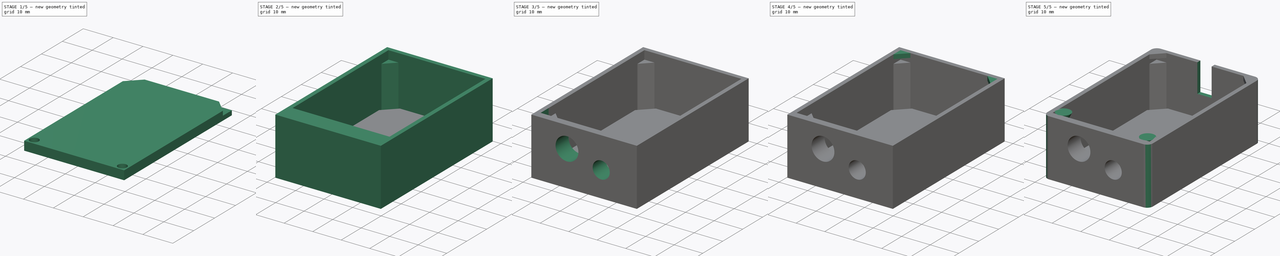
[diagram: build sequence overview — one tinted view per stage of 5, left to right]
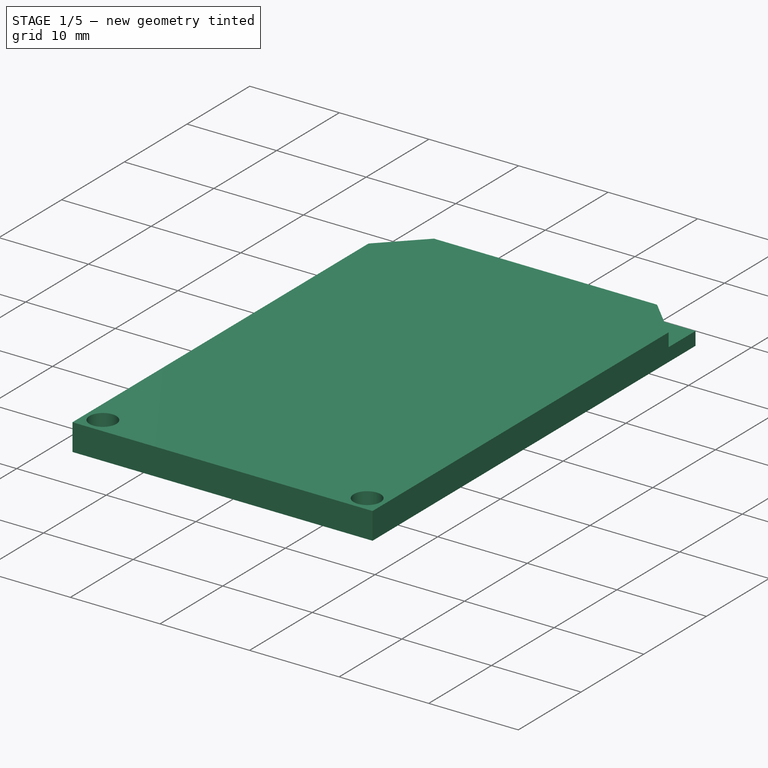
[diagram: stage 1 of 5 — iso view after this stage's code; geometry added in this stage tinted green]
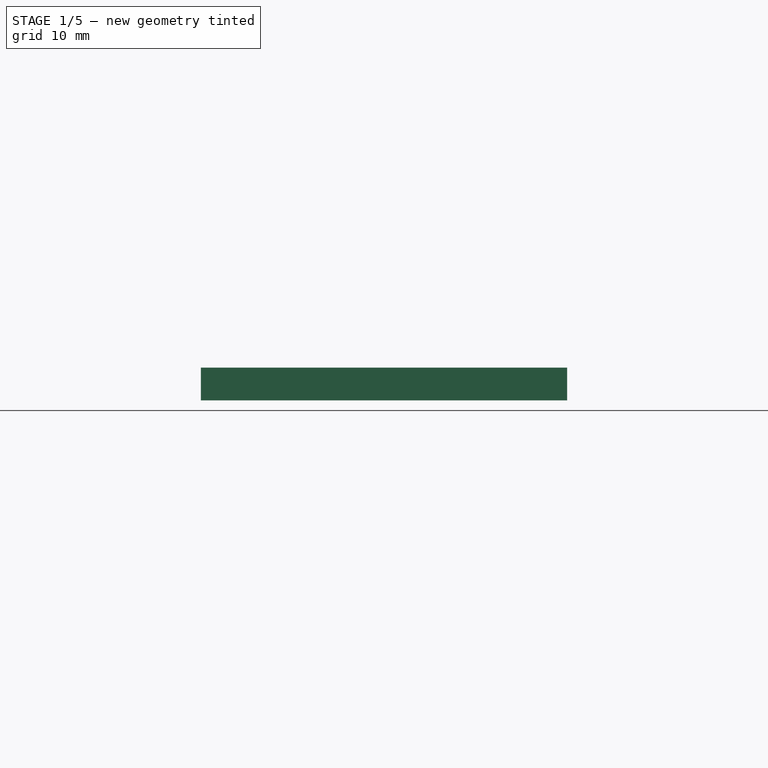
[diagram: stage 1 of 5 — front view after this stage's code; geometry added in this stage tinted green]
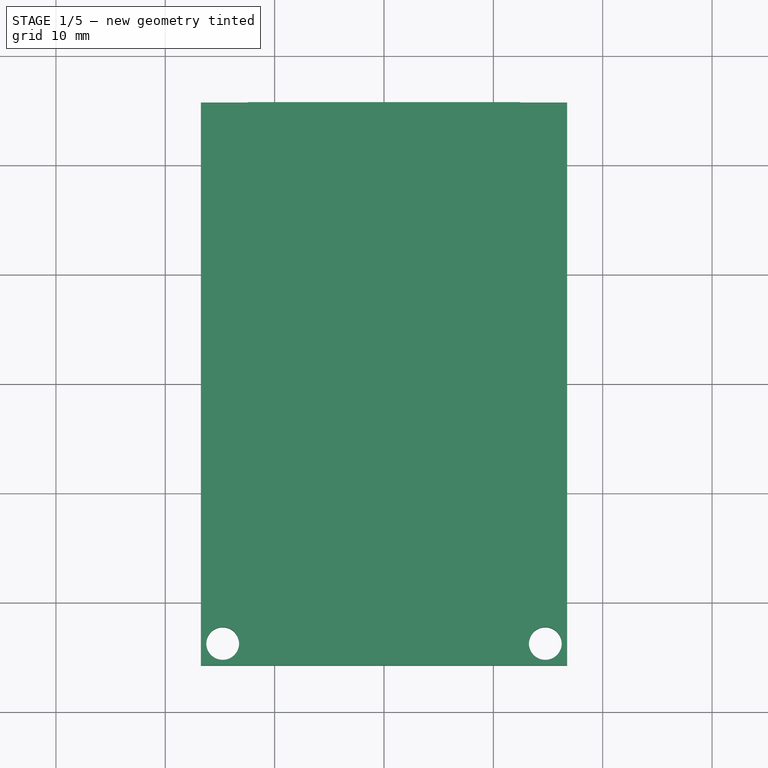
[diagram: stage 1 of 5 — top view after this stage's code; geometry added in this stage tinted green]
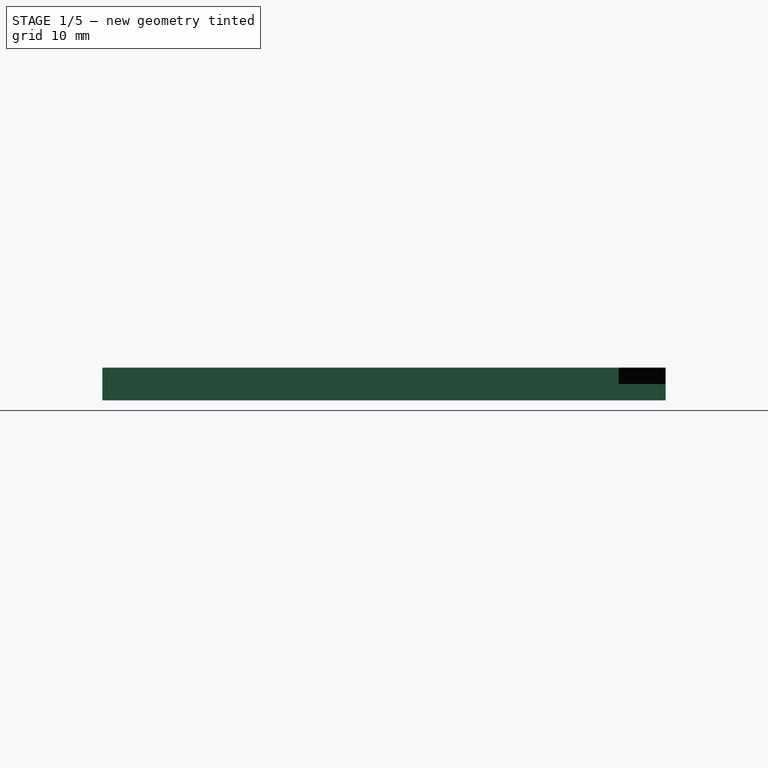
[diagram: stage 1 of 5 — right view after this stage's code; geometry added in this stage tinted green]
FCSTD DOCUMENT  (FreeCAD 0.17R13522 (Git))
Label: WaiKe-jwei-2.0
License: All rights reserved
LicenseURL: http://en.wikipedia.org/wiki/All_rights_reserved
objects: Sketcher::SketchObject×12, PartDesign::Pocket×8, PartDesign::Pad×4, PartDesign::Mirrored×4, Part::Cone×2, PartDesign::Body×2, PartDesign::Fillet×1
note: 45 computed .brp shape members not serialized (recipe doc carries the construction recipe); baked Part::Feature solids carry a one-line shape summary decoded from their .brp

FEATURE [Sketcher::SketchObject] Sketch007
  MapMode = 5
  Support = -> [XY_Plane001]
  sketch-geometry (4):
    g0: LineSegment StartX=-16.75 StartY=25.75 StartZ=0 EndX=16.75 EndY=25.75 EndZ=0
    g1: LineSegment StartX=16.75 StartY=25.75 StartZ=0 EndX=16.75 EndY=-25.75 EndZ=0
    g2: LineSegment StartX=16.75 StartY=-25.75 StartZ=0 EndX=-16.75 EndY=-25.75 EndZ=0
    g3: LineSegment StartX=-16.75 StartY=-25.75 StartZ=0 EndX=-16.75 EndY=25.75 EndZ=0
  constraints (12):
    c: Coincident(g0,g1)
    c: Coincident(g1,g2)
    c: Coincident(g2,g3)
    c: Coincident(g3,g0)
    c: Horizontal(g0)
    c: Horizontal(g2)
    c: Vertical(g1)
    c: Vertical(g3)
    c: DistanceX(g0,g0) = 33.5
    c: DistanceY(g3,g3) = 51.5
    c: DistanceX(g0,g-1) = 16.75
    c: DistanceY(g-1,g0) = 25.75
FEATURE [PartDesign::Pad] Pad003
  Length = 3
  Length2 = 100
  Profile = -> Sketch007
  Type = 0
FEATURE [Sketcher::SketchObject] Sketch008
  ExternalGeometry = -> [Pad003]
  MapMode = 5
  Placement = pos=(0,0,3) rot=(0,0,1;0rad)
  Support = -> [Pad003]
  sketch-geometry (6):
    g0: LineSegment StartX=-16.75 StartY=25.75 StartZ=0 EndX=-16.75 EndY=21.45 EndZ=0
    g1: LineSegment StartX=-16.75 StartY=21.45 StartZ=0 EndX=-12.45 EndY=25.75 EndZ=0
    g2: LineSegment StartX=-12.45 StartY=25.75 StartZ=0 EndX=-16.75 EndY=25.75 EndZ=0
    g3: LineSegment StartX=12.45 StartY=25.75 StartZ=0 EndX=16.75 EndY=25.75 EndZ=0
    g4: LineSegment StartX=16.75 StartY=25.75 StartZ=0 EndX=16.75 EndY=21.45 EndZ=0
    g5: LineSegment StartX=16.75 StartY=21.45 StartZ=0 EndX=12.45 EndY=25.75 EndZ=0
  constraints (16):
    c: Vertical(g0)
    c: Coincident(g0,g1)
    c: Coincident(g1,g2)
    c: Coincident(g2,g0)
    c: Horizontal(g2)
    c: Horizontal(g3)
    c: Coincident(g3,g4)
    c: Vertical(g4)
    c: Coincident(g4,g5)
    c: Coincident(g5,g3)
    c: Equal(g2,g0)
    c: DistanceX(g2,g2) = 4.3
    c: Equal(g3,g4)
    c: DistanceX(g3,g3) = 4.3
    c: Coincident(g3,g-3)
    c: Coincident(g-3,g0)
FEATURE [PartDesign::Pocket] Pocket004
  BaseFeature = -> Pad003
  Length = 1.5
  Length2 = 100
  Profile = -> Sketch008
  Type = 0
FEATURE [Sketcher::SketchObject] Sketch009
  ExternalGeometry = -> [Pocket004]
  MapMode = 5
  Placement = pos=(0,0,3) rot=(0,0,1;0rad)
  Support = -> [Pocket004]
  sketch-geometry (1):
    g0: Circle CenterX=-14.75 CenterY=-23.75 CenterZ=0 NormalX=0 NormalY=0 NormalZ=1 AngleXU=0 Radius=1.5
  constraints (3):
    c: Radius(g0) = 1.5
    c: Distance(g0,g-3) = 2
    c: Distance(g0,g-4) = 2
FEATURE [PartDesign::Pocket] Pocket005
  BaseFeature = -> Pocket004
  Length = 5
  Length2 = 100
  Profile = -> Sketch009
  Type = 1
FEATURE [PartDesign::Mirrored] Mirrored003
  BaseFeature = -> Pocket005
  MirrorPlane = -> Sketch009 [V_Axis]
  Originals = -> [Pocket005]
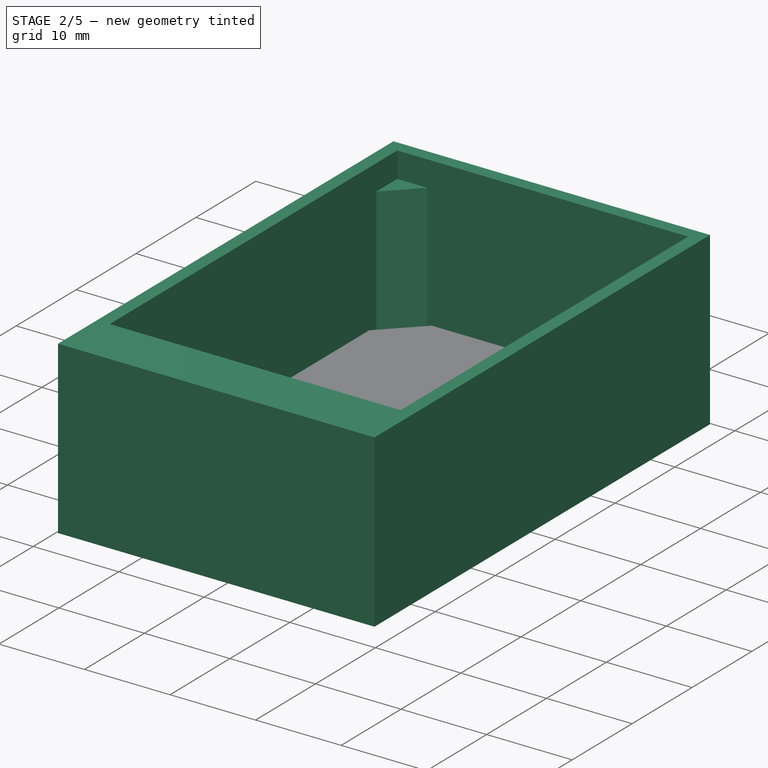
[diagram: stage 2 of 5 — iso view after this stage's code; geometry added in this stage tinted green]
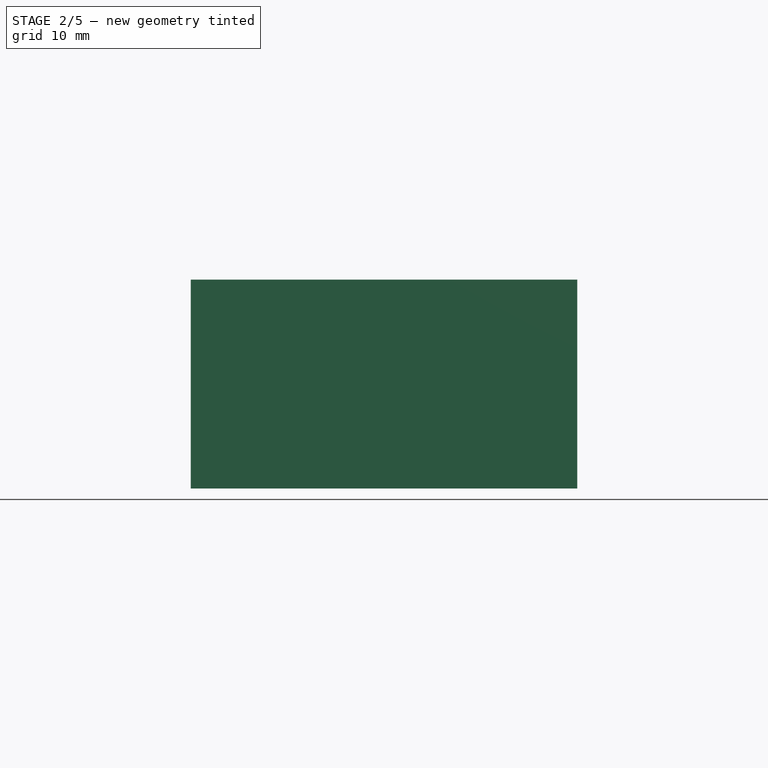
[diagram: stage 2 of 5 — front view after this stage's code; geometry added in this stage tinted green]
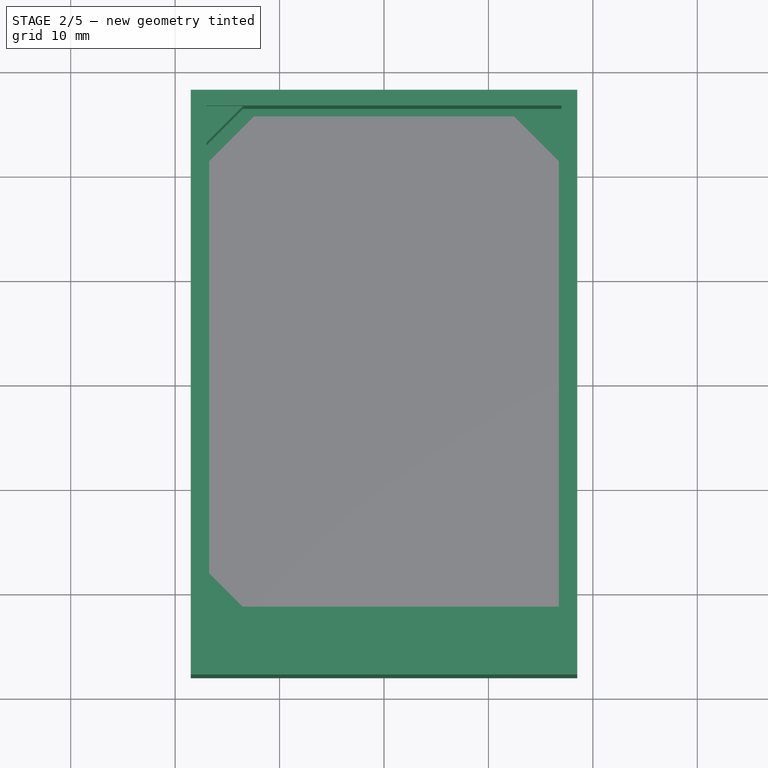
[diagram: stage 2 of 5 — top view after this stage's code; geometry added in this stage tinted green]
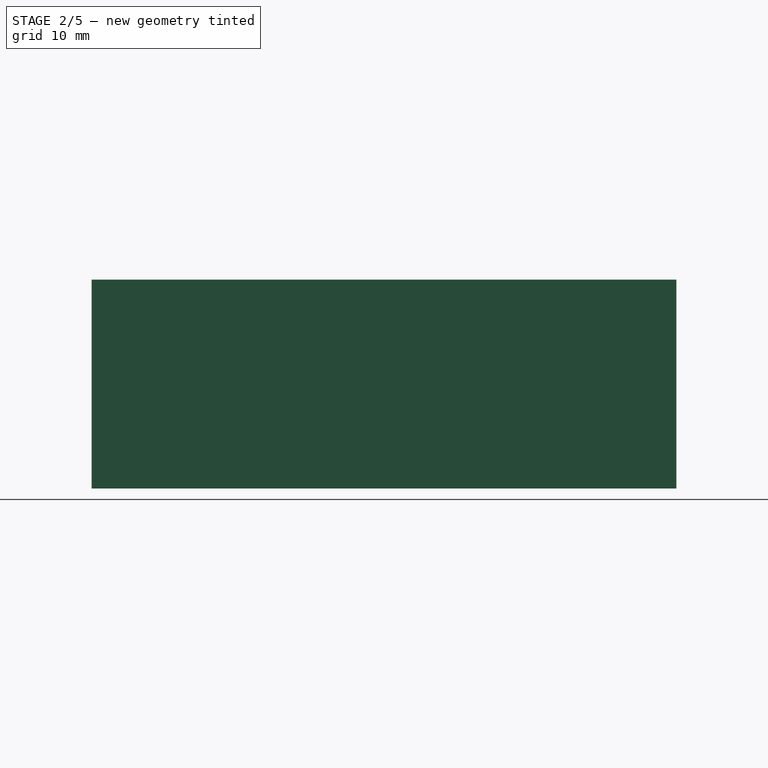
[diagram: stage 2 of 5 — right view after this stage's code; geometry added in this stage tinted green]
FEATURE [Sketcher::SketchObject] Sketch
  MapMode = 5
  Support = -> [XY_Plane]
  sketch-geometry (4):
    g0: LineSegment StartX=-18.5 StartY=28 StartZ=0 EndX=18.5 EndY=28 EndZ=0
    g1: LineSegment StartX=18.5 StartY=28 StartZ=0 EndX=18.5 EndY=-28 EndZ=0
    g2: LineSegment StartX=18.5 StartY=-28 StartZ=0 EndX=-18.5 EndY=-28 EndZ=0
    g3: LineSegment StartX=-18.5 StartY=-28 StartZ=0 EndX=-18.5 EndY=28 EndZ=0
  constraints (12):
    c: Coincident(g0,g1)
    c: Coincident(g1,g2)
    c: Coincident(g2,g3)
    c: Coincident(g3,g0)
    c: Horizontal(g0)
    c: Horizontal(g2)
    c: Vertical(g1)
    c: Vertical(g3)
    c: DistanceY(g3,g3) = 56
    c: DistanceX(g0,g0) = 37
    c: DistanceX(g0,g-1) = 18.5
    c: DistanceY(g-1,g0) = 28
FEATURE [PartDesign::Pad] Pad
  Length = 20
  Length2 = 100
  Profile = -> Sketch
  Type = 0
FEATURE [Sketcher::SketchObject] Sketch001
  ExternalGeometry = -> [Pad]
  MapMode = 5
  Placement = pos=(0,0,20) rot=(0,0,1;0rad)
  Support = -> [Pad]
  sketch-geometry (4):
    g0: LineSegment StartX=-17 StartY=26.5 StartZ=0 EndX=17 EndY=26.5 EndZ=0
    g1: LineSegment StartX=17 StartY=26.5 StartZ=0 EndX=17 EndY=-21.5 EndZ=0
    g2: LineSegment StartX=17 StartY=-21.5 StartZ=0 EndX=-17 EndY=-21.5 EndZ=0
    g3: LineSegment StartX=-17 StartY=-21.5 StartZ=0 EndX=-17 EndY=26.5 EndZ=0
  constraints (12):
    c: Coincident(g0,g1)
    c: Coincident(g1,g2)
    c: Coincident(g2,g3)
    c: Coincident(g3,g0)
    c: Horizontal(g0)
    c: Horizontal(g2)
    c: Vertical(g1)
    c: Vertical(g3)
    c: DistanceY(g3,g3) = 48
    c: Distance(g0,g-3) = 1.5
    c: DistanceX(g0,g0) = 34
    c: Distance(g0,g-4) = 1.5
FEATURE [PartDesign::Pocket] Pocket
  BaseFeature = -> Pad
  Length = 18.5
  Length2 = 100
  Profile = -> Sketch001
  Type = 0
FEATURE [Sketcher::SketchObject] Sketch002
  ExternalGeometry = -> [Pocket]
  MapMode = 5
  Placement = pos=(0,0,1.5) rot=(0,0,1;0rad)
  Support = -> [Pocket]
  sketch-geometry (6):
    g0: LineSegment StartX=-17 StartY=23 StartZ=0 EndX=-17 EndY=26.5 EndZ=0
    g1: LineSegment StartX=-17 StartY=26.5 StartZ=0 EndX=-13.5 EndY=26.5 EndZ=0
    g2: LineSegment StartX=-13.5 StartY=26.5 StartZ=0 EndX=-17 EndY=23 EndZ=0
    g3: LineSegment StartX=-17 StartY=-18 StartZ=0 EndX=-17 EndY=-21.5 EndZ=0
    g4: LineSegment StartX=-17 StartY=-21.5 StartZ=0 EndX=-13.5 EndY=-21.5 EndZ=0
    g5: LineSegment StartX=-13.5 StartY=-21.5 StartZ=0 EndX=-17 EndY=-18 EndZ=0
  constraints (16):
    c: Vertical(g0)
    c: Coincident(g0,g1)
    c: Horizontal(g1)
    c: Coincident(g1,g2)
    c: Coincident(g2,g0)
    c: Coincident(g0,g-4)
    c: DistanceY(g0,g0) = 3.5
    c: Equal(g1,g0)
    c: Vertical(g3)
    c: Coincident(g3,g4)
    c: Horizontal(g4)
    c: Coincident(g4,g5)
    c: Coincident(g5,g3)
    c: Coincident(g3,g-5)
    c: DistanceX(g4,g4) = 3.5
    c: Equal(g3,g4)
FEATURE [PartDesign::Pad] Pad001
  BaseFeature = -> Pocket
  Length = 15.5
  Length2 = 100
  Profile = -> Sketch002
  Type = 0
FEATURE [PartDesign::Body] Body  label="壳"
  Group = -> [Sketch,Pad,Sketch001,Pocket,Sketch002,Pad001,Mirrored,Sketch003,Pocket001,Sketch004,Pocket002,Sketch005,Pad002,Mirrored001,Sketch006,Pocket003,Mirrored002,Fillet,Sketch010,Pocket006]
  Origin = -> Origin
  Tip = -> Pocket006
FEATURE [Sketcher::SketchObject] Sketch011
  ExternalGeometry = -> [Mirrored003]
  MapMode = 5
  Placement = pos=(0,0,0) rot=(1,0,0;3.14159rad)
  Support = -> [Mirrored003]
  sketch-geometry (4):
    g0: LineSegment StartX=-10.75 StartY=25.75 StartZ=0 EndX=0.75 EndY=25.75 EndZ=0
    g1: LineSegment StartX=0.75 StartY=25.75 StartZ=0 EndX=0.75 EndY=10.75 EndZ=0
    g2: LineSegment StartX=0.75 StartY=10.75 StartZ=0 EndX=-10.75 EndY=10.75 EndZ=0
    g3: LineSegment StartX=-10.75 StartY=10.75 StartZ=0 EndX=-10.75 EndY=25.75 EndZ=0
  constraints (12):
    c: Coincident(g0,g1)
    c: Coincident(g1,g2)
    c: Coincident(g2,g3)
    c: Coincident(g3,g0)
    c: Horizontal(g0)
    c: Horizontal(g2)
    c: Vertical(g1)
    c: Vertical(g3)
    c: PointOnObject(g0,g-5)
    c: DistanceX(g-5,g0) = 6
    c: DistanceX(g0,g-5) = 16
    c: DistanceY(g3,g3) = 15
FEATURE [PartDesign::Pocket] Pocket007
  BaseFeature = -> Mirrored003
  Length = 1.5
  Length2 = 100
  Profile = -> Sketch011
  Type = 0
FEATURE [PartDesign::Body] Body001  label="盖"
  Group = -> [Sketch007,Pad003,Sketch008,Pocket004,Sketch009,Pocket005,Mirrored003,Sketch011,Pocket007]
  Origin = -> Origin001
  Placement = pos=(0,0.5,17) rot=(0,0,1;0rad)
  Tip = -> Pocket007
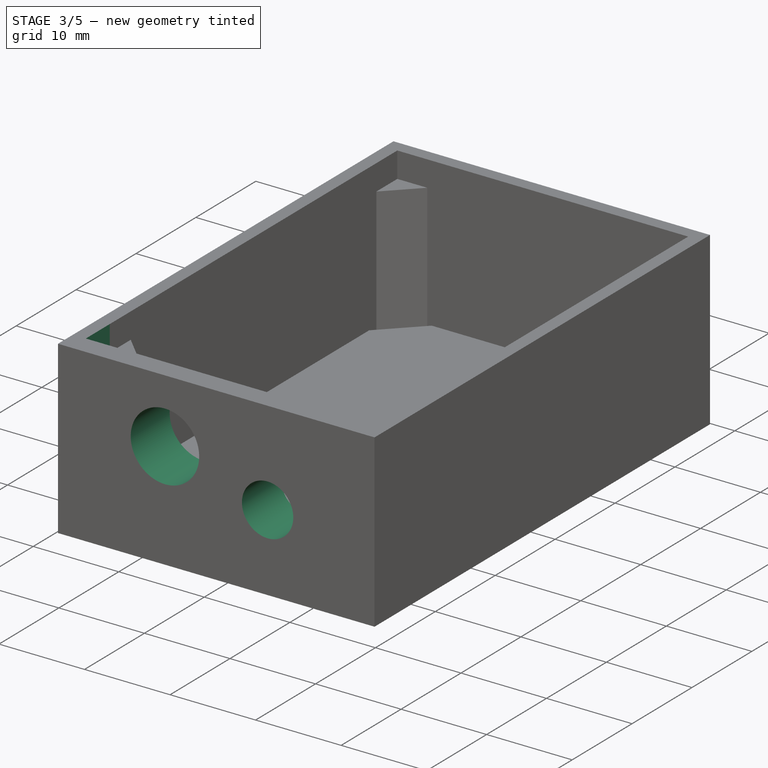
[diagram: stage 3 of 5 — iso view after this stage's code; geometry added in this stage tinted green]
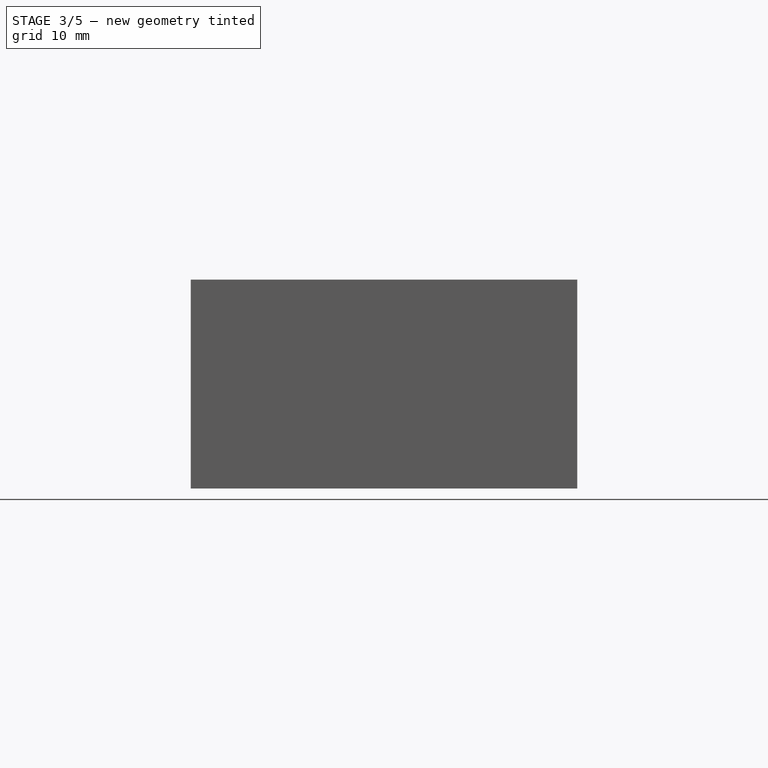
[diagram: stage 3 of 5 — front view after this stage's code; geometry added in this stage tinted green]
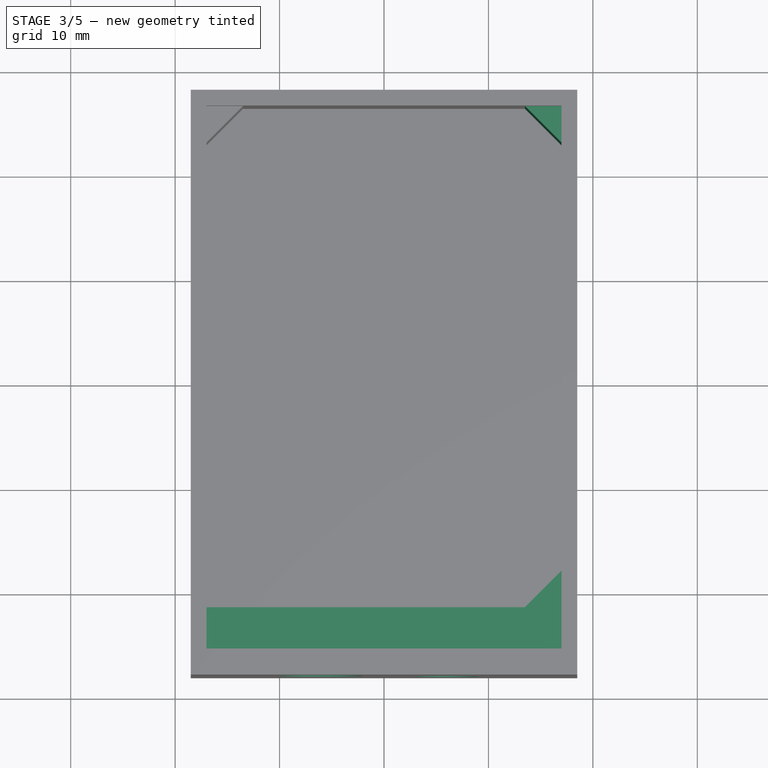
[diagram: stage 3 of 5 — top view after this stage's code; geometry added in this stage tinted green]
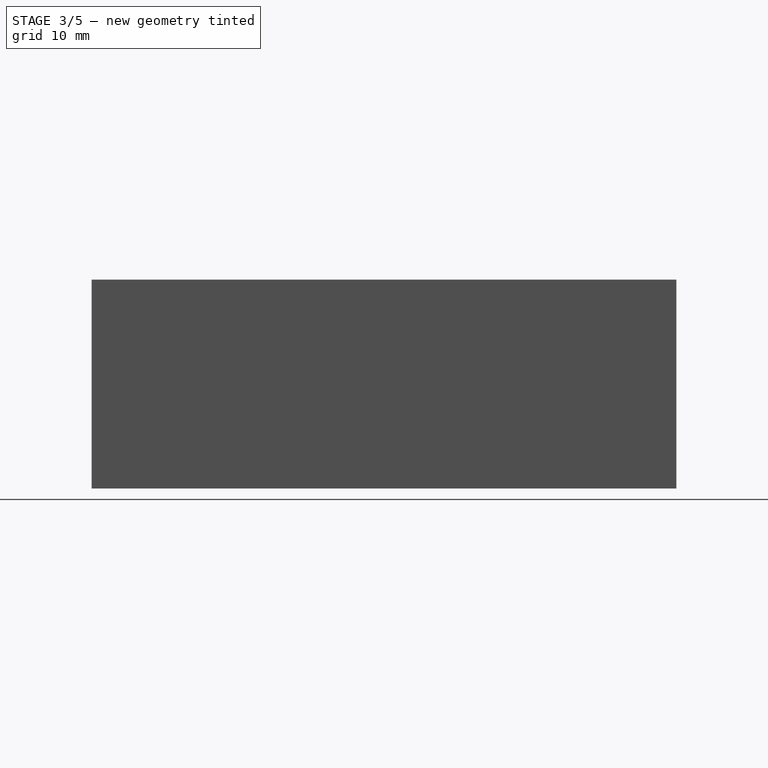
[diagram: stage 3 of 5 — right view after this stage's code; geometry added in this stage tinted green]
FEATURE [PartDesign::Mirrored] Mirrored
  BaseFeature = -> Pad001
  MirrorPlane = -> Sketch002 [V_Axis]
  Originals = -> [Pad001]
FEATURE [Sketcher::SketchObject] Sketch003
  ExternalGeometry = -> [Mirrored]
  MapMode = 5
  Placement = pos=(0,-28,0) rot=(1,0,0;1.5708rad)
  Support = -> [Mirrored]
  sketch-geometry (2):
    g0: Circle CenterX=6 CenterY=9 CenterZ=0 NormalX=0 NormalY=0 NormalZ=1 AngleXU=0 Radius=3
    g1: Circle CenterX=-6 CenterY=12.5 CenterZ=0 NormalX=0 NormalY=0 NormalZ=1 AngleXU=0 Radius=4
  constraints (6):
    c: Radius(g1) = 4
    c: Radius(g0) = 3
    c: Distance(g1,g-3) = 12.5
    c: Distance(g0,g-4) = 12.5
    c: DistanceY(g-1,g1) = 12.5
    c: DistanceY(g-1,g0) = 9
FEATURE [PartDesign::Pocket] Pocket001
  BaseFeature = -> Mirrored
  Length = 0
  Length2 = 100
  Profile = -> Sketch003
  Type = 3
  UpToFace = -> Mirrored [Face9]
FEATURE [Sketcher::SketchObject] Sketch004
  ExternalGeometry = -> [Pocket001]
  MapMode = 5
  Placement = pos=(0,0,20) rot=(0,0,1;0rad)
  Support = -> [Pocket001]
  sketch-geometry (4):
    g0: LineSegment StartX=-17 StartY=-21.5 StartZ=0 EndX=17 EndY=-21.5 EndZ=0
    g1: LineSegment StartX=17 StartY=-21.5 StartZ=0 EndX=17 EndY=-25.5 EndZ=0
    g2: LineSegment StartX=17 StartY=-25.5 StartZ=0 EndX=-17 EndY=-25.5 EndZ=0
    g3: LineSegment StartX=-17 StartY=-25.5 StartZ=0 EndX=-17 EndY=-21.5 EndZ=0
  constraints (11):
    c: Coincident(g0,g1)
    c: Coincident(g1,g2)
    c: Coincident(g2,g3)
    c: Coincident(g3,g0)
    c: Horizontal(g0)
    c: Horizontal(g2)
    c: Vertical(g1)
    c: Vertical(g3)
    c: Coincident(g0,g-3)
    c: Coincident(g0,g-3)
    c: DistanceY(g3,g3) = 4
FEATURE [PartDesign::Pocket] Pocket002
  BaseFeature = -> Pocket001
  Length = 3
  Length2 = 100
  Profile = -> Sketch004
  Type = 0
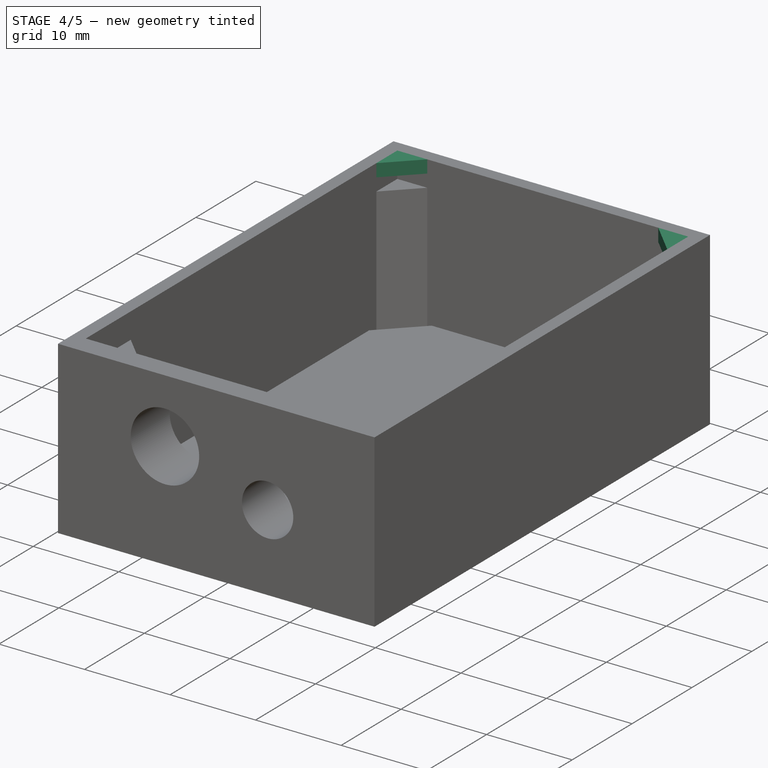
[diagram: stage 4 of 5 — iso view after this stage's code; geometry added in this stage tinted green]
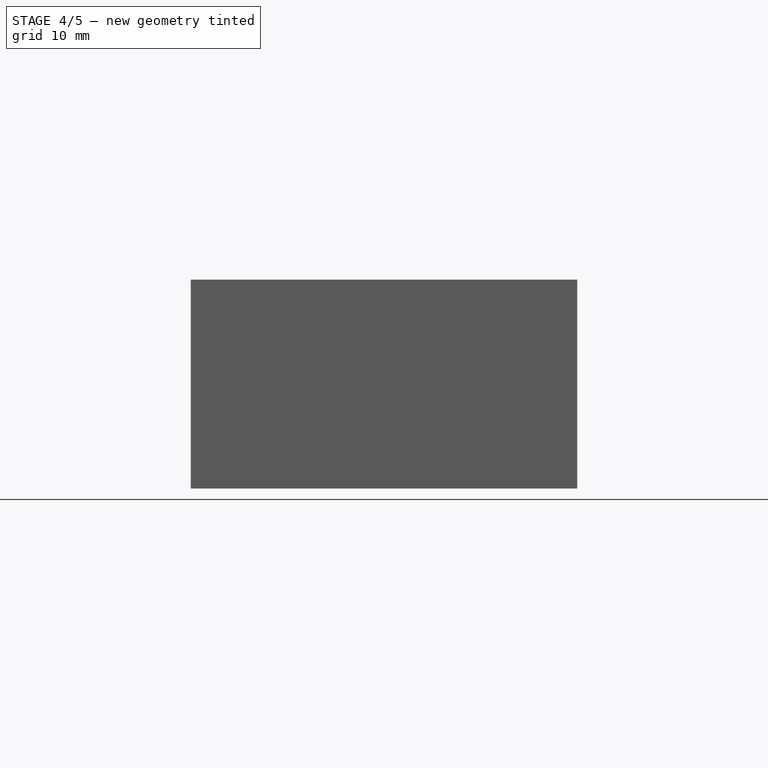
[diagram: stage 4 of 5 — front view after this stage's code; geometry added in this stage tinted green]
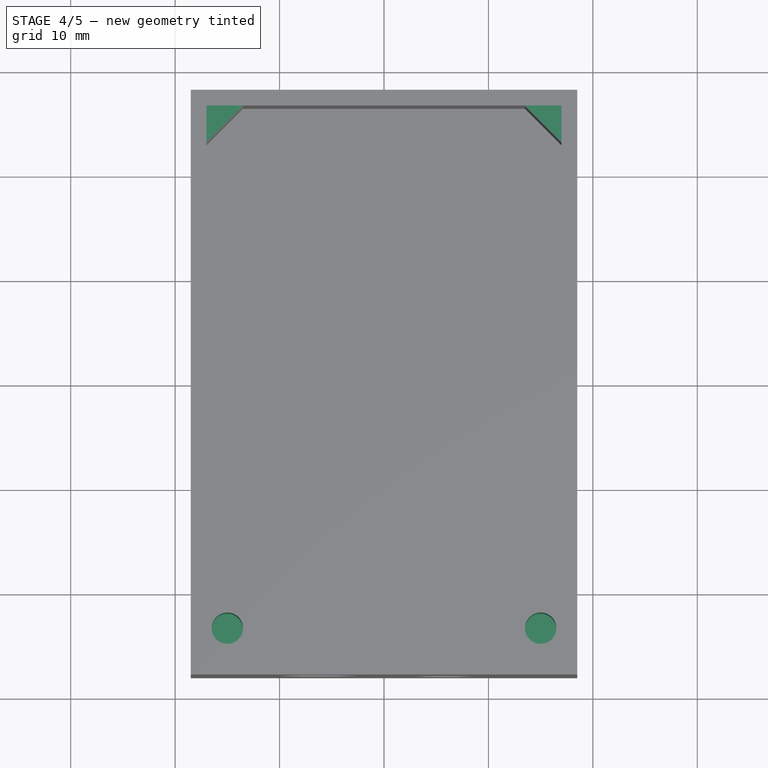
[diagram: stage 4 of 5 — top view after this stage's code; geometry added in this stage tinted green]
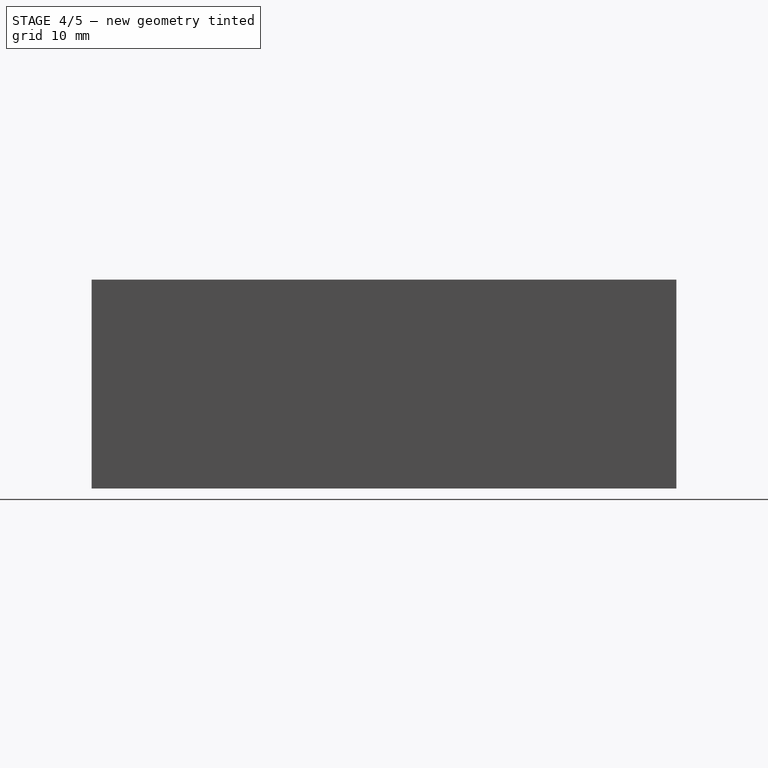
[diagram: stage 4 of 5 — right view after this stage's code; geometry added in this stage tinted green]
FEATURE [Sketcher::SketchObject] Sketch005
  AttachmentOffset = pos=(0,0,1.5) rot=(0,0,1;0rad)
  ExternalGeometry = -> [Pocket002]
  MapMode = 5
  Placement = pos=(0,0,18.5) rot=(0,0,1;0rad)
  Support = -> [Pocket002]
  sketch-geometry (3):
    g0: LineSegment StartX=-17 StartY=23 StartZ=0 EndX=-17 EndY=26.5 EndZ=0
    g1: LineSegment StartX=-17 StartY=26.5 StartZ=0 EndX=-13.5 EndY=26.5 EndZ=0
    g2: LineSegment StartX=-13.5 StartY=26.5 StartZ=0 EndX=-17 EndY=23 EndZ=0
  constraints (8):
    c: Vertical(g0)
    c: Coincident(g0,g1)
    c: Horizontal(g1)
    c: Coincident(g1,g2)
    c: Coincident(g2,g0)
    c: Coincident(g0,g-3)
    c: Coincident(g0,g-4)
    c: Coincident(g1,g-3)
FEATURE [PartDesign::Pad] Pad002
  BaseFeature = -> Pocket002
  Length = 1.5
  Length2 = 100
  Profile = -> Sketch005
  Type = 0
FEATURE [PartDesign::Mirrored] Mirrored001
  BaseFeature = -> Pad002
  MirrorPlane = -> Sketch005 [V_Axis]
  Originals = -> [Pad002]
FEATURE [Sketcher::SketchObject] Sketch006
  ExternalGeometry = -> [Mirrored001]
  MapMode = 5
  Placement = pos=(0,0,17) rot=(0,0,1;0rad)
  Support = -> [Mirrored001]
  sketch-geometry (1):
    g0: Circle CenterX=-15 CenterY=-23.5 CenterZ=0 NormalX=0 NormalY=0 NormalZ=1 AngleXU=0 Radius=1.5
  constraints (3):
    c: Radius(g0) = 1.5
    c: Distance(g0,g-4) = 3.5
    c: Distance(g0,g-3) = 4.5
FEATURE [PartDesign::Pocket] Pocket003
  BaseFeature = -> Mirrored001
  Length = 7
  Length2 = 100
  Profile = -> Sketch006
  Type = 0
FEATURE [PartDesign::Mirrored] Mirrored002
  BaseFeature = -> Pocket003
  MirrorPlane = -> Sketch006 [V_Axis]
  Originals = -> [Pocket003]
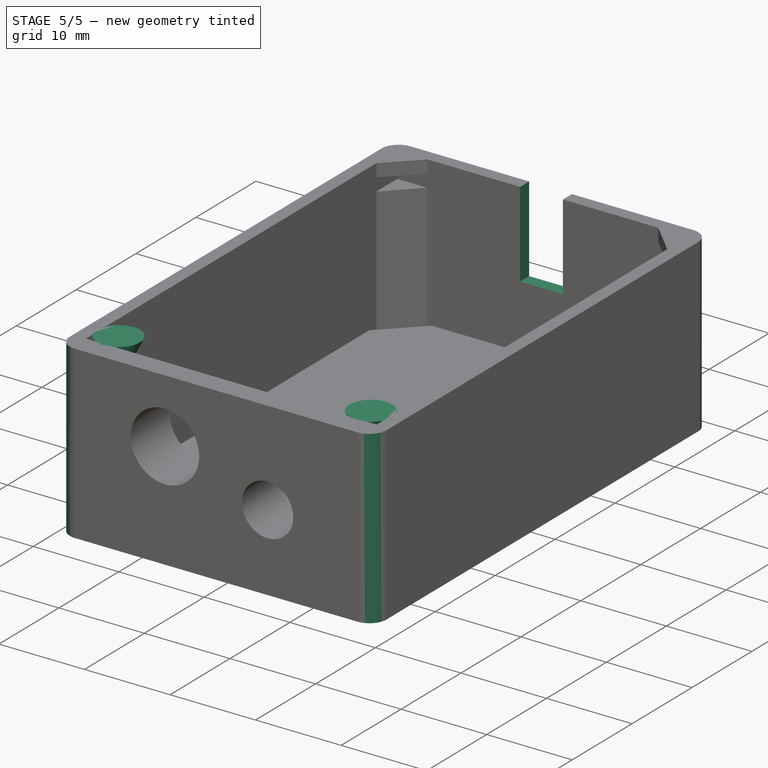
[diagram: stage 5 of 5 — iso view after this stage's code; geometry added in this stage tinted green]
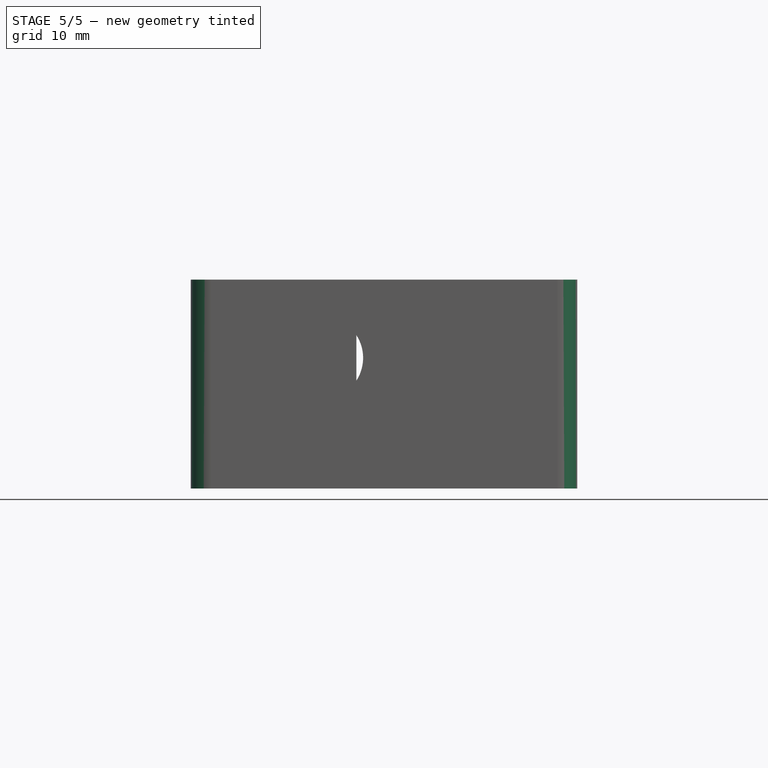
[diagram: stage 5 of 5 — front view after this stage's code; geometry added in this stage tinted green]
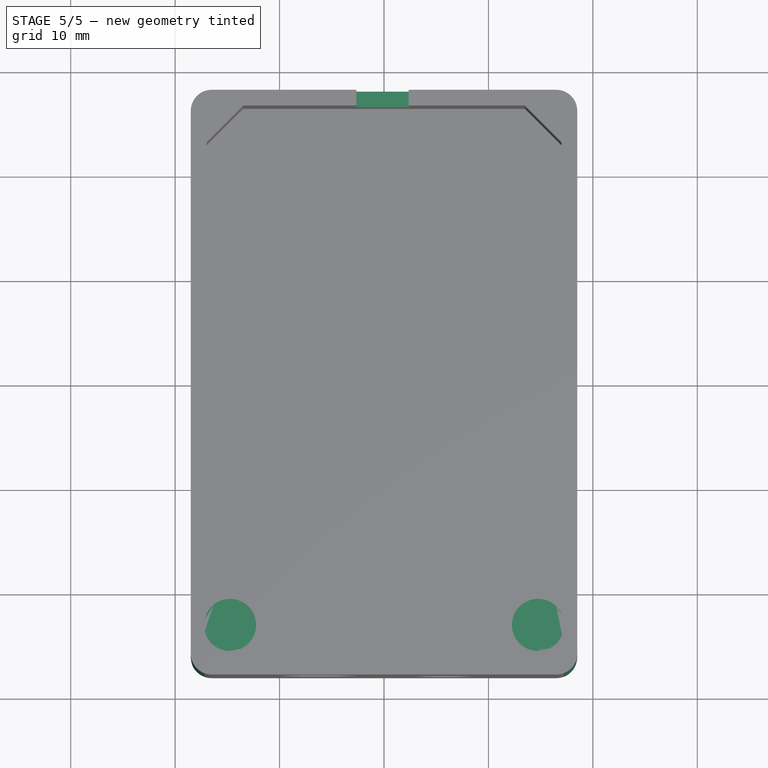
[diagram: stage 5 of 5 — top view after this stage's code; geometry added in this stage tinted green]
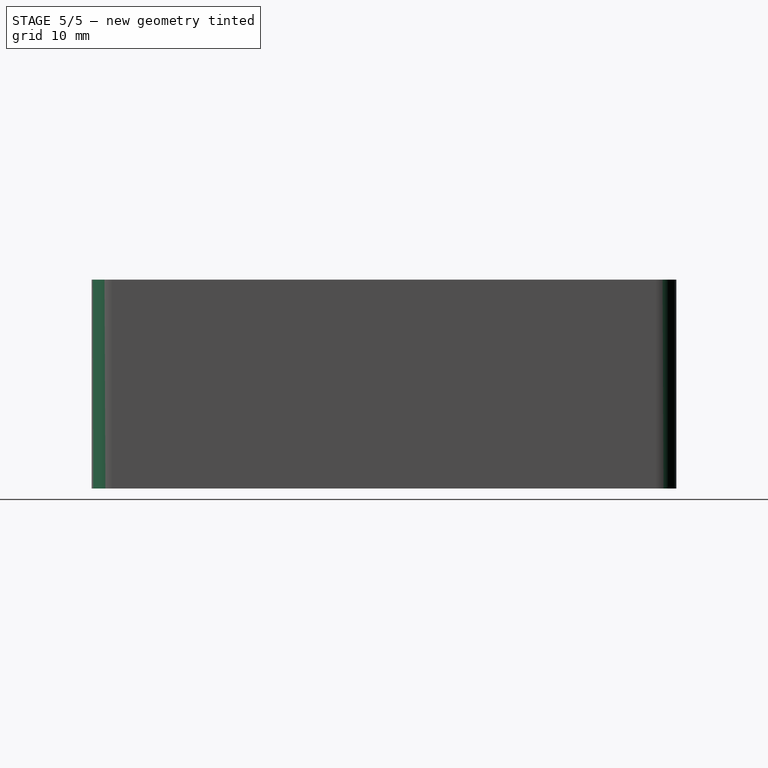
[diagram: stage 5 of 5 — right view after this stage's code; geometry added in this stage tinted green]
FEATURE [PartDesign::Fillet] Fillet
  Base = -> Mirrored002 [Edge22,Edge5,Edge1,Edge4]
  BaseFeature = -> Mirrored002
  Radius = 2
FEATURE [Part::Cone] Cone  label="沉孔1"
  Angle = 360
  AttacherType = Attacher::AttachEngine3D
  Height = 2
  Placement = pos=(-14.75,-23.25,18) rot=(0,0,1;0rad)
  Radius1 = 1.5
  Radius2 = 2.5
FEATURE [Part::Cone] Cone001  label="沉孔2"
  Angle = 360
  AttacherType = Attacher::AttachEngine3D
  Height = 2
  Placement = pos=(14.75,-23.25,18) rot=(0,0,1;0rad)
  Radius1 = 1.5
  Radius2 = 2.5
FEATURE [Sketcher::SketchObject] Sketch010
  ExternalGeometry = -> [Fillet]
  MapMode = 5
  Placement = pos=(0,28,0) rot=(0,0.707107,0.707107;3.14159rad)
  Support = -> [Fillet]
  sketch-geometry (4):
    g0: LineSegment StartX=-2.35259 StartY=20 StartZ=0 EndX=2.64741 EndY=20 EndZ=0
    g1: LineSegment StartX=2.64741 StartY=20 StartZ=0 EndX=2.64741 EndY=10 EndZ=0
    g2: LineSegment StartX=2.64741 StartY=10 StartZ=0 EndX=-2.35259 EndY=10 EndZ=0
    g3: LineSegment StartX=-2.35259 StartY=10 StartZ=0 EndX=-2.35259 EndY=20 EndZ=0
  constraints (11):
    c: Coincident(g0,g1)
    c: Coincident(g1,g2)
    c: Coincident(g2,g3)
    c: Coincident(g3,g0)
    c: Horizontal(g0)
    c: Horizontal(g2)
    c: Vertical(g1)
    c: Vertical(g3)
    c: DistanceX(g2,g2) = 5
    c: DistanceY(g3,g3) = 10
    c: PointOnObject(g0,g-3)
FEATURE [PartDesign::Pocket] Pocket006
  BaseFeature = -> Fillet
  Length = 5
  Length2 = 100
  Profile = -> Sketch010
  Type = 0
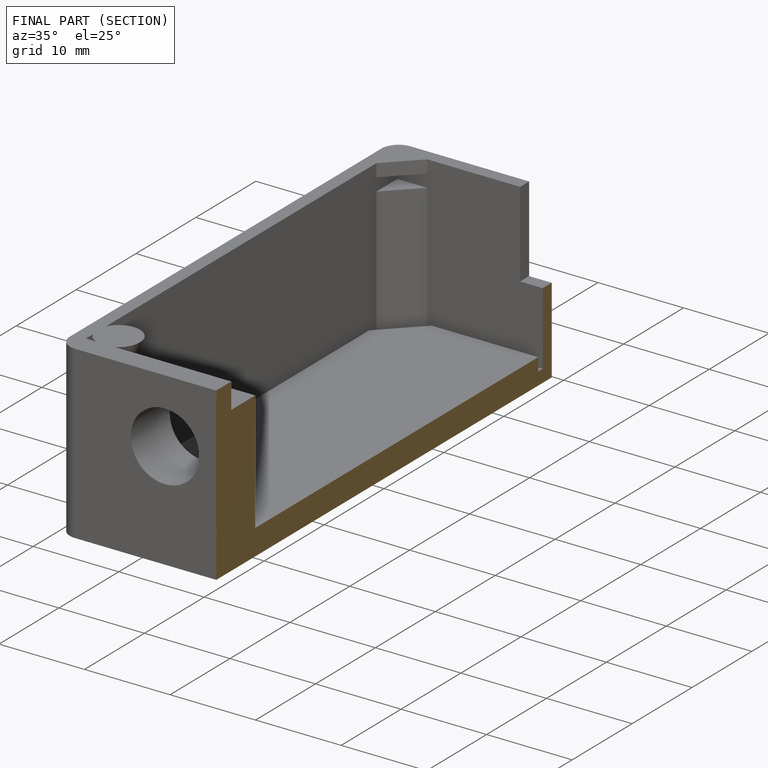
[diagram: finished part — half-section view (interior)]
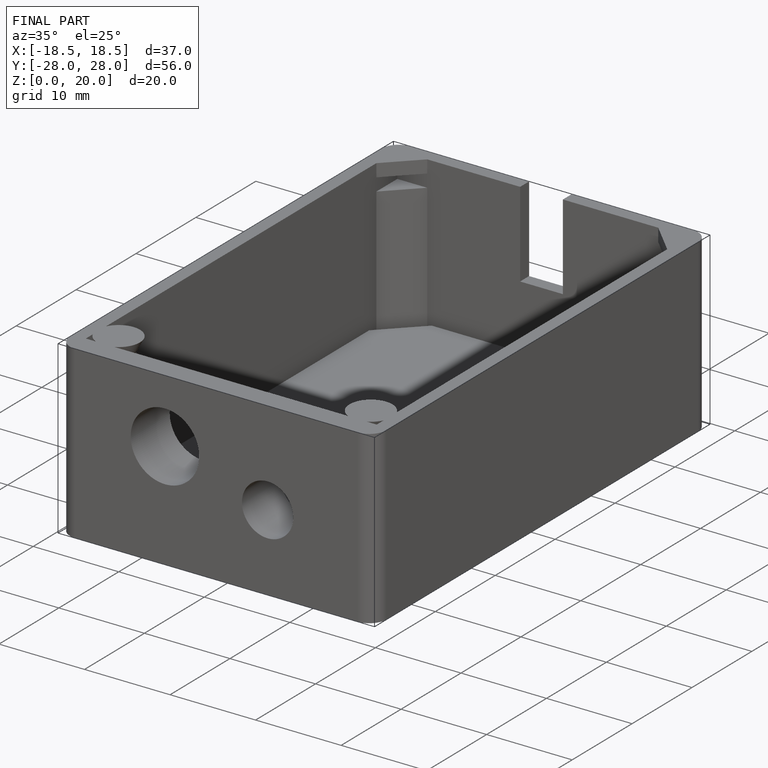
[diagram: finished part — iso view with bounding-box wireframe]
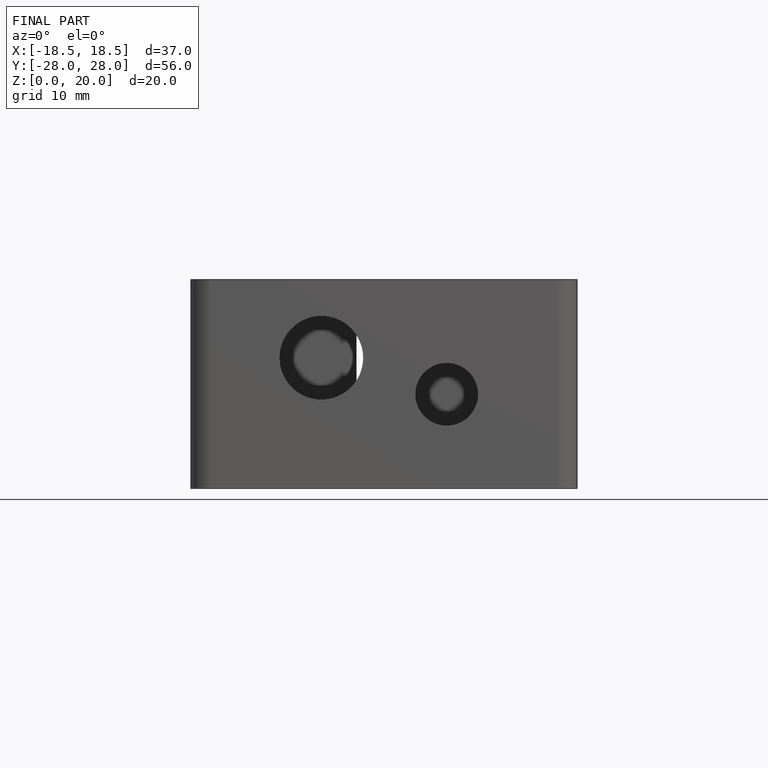
[diagram: finished part — front view with bounding-box wireframe]
